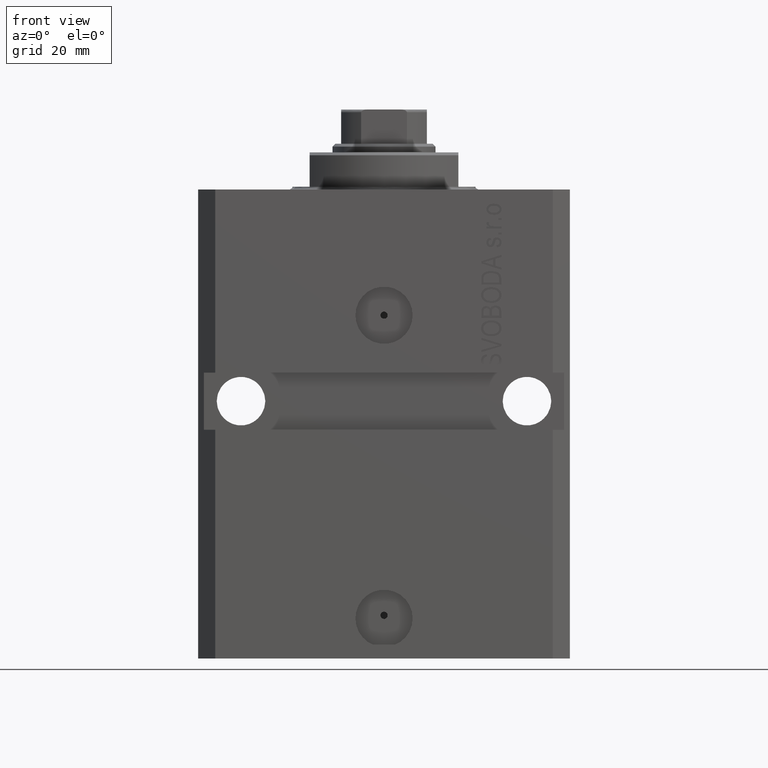
[diagram: clean part render]
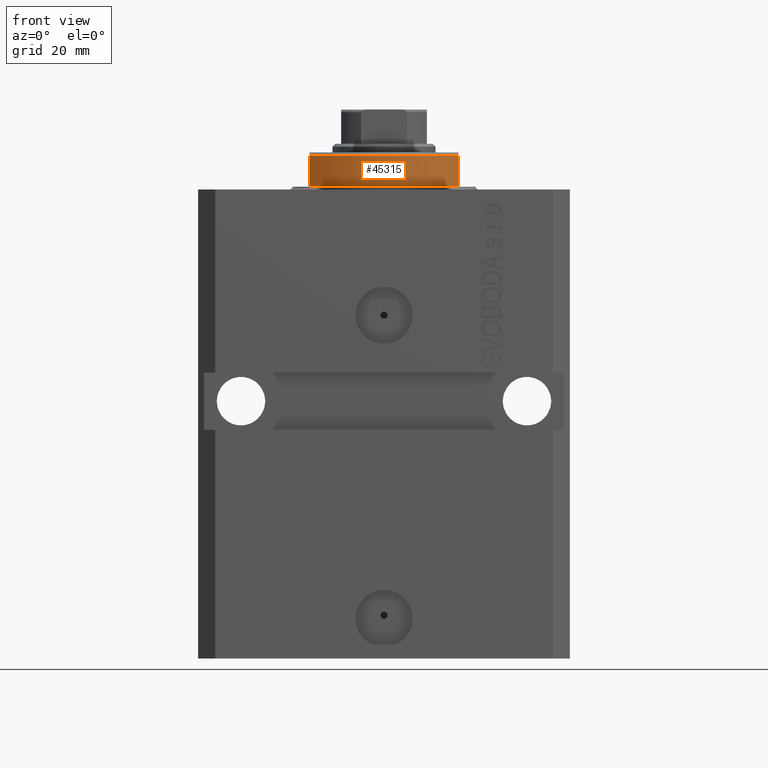
[diagram: same view with one face highlighted and labeled with its STEP entity id]
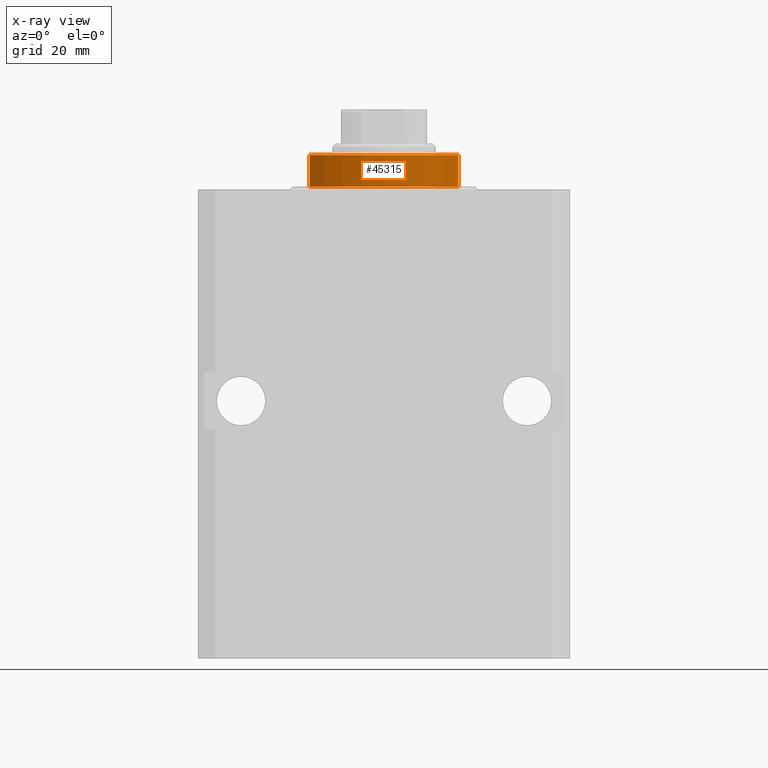
[diagram: x-ray of the same camera — body ghosted, the highlighted face saturated]
A machine part, front view. The second image highlights one B-rep face of the part: STEP entity #45315.
The next image is the same camera in x-ray: the body ghosted, the highlighted face saturated — about 0% of this face is hidden behind the body in this view.
In plain terms, the highlighted cylindrical surface (partial cylindrical patch) has radius 16 mm, axis along (0, 0, -1).
Its self-contained STEP definition (entity closure, byte-faithful):
#39 = CYLINDRICAL_SURFACE ( 'NONE', #16968, 16.00000000000000000 ) ;
#2165 = CARTESIAN_POINT ( 'NONE',  ( 13.00000000000000000, -9.327379053088813876, -6.500000000000000000 ) ) ;
#2357 = CARTESIAN_POINT ( 'NONE',  ( 0.000000000000000000, 0.000000000000000000, -0.4999999999999995559 ) ) ;
#7912 = DIRECTION ( 'NONE',  ( -0.000000000000000000, -0.000000000000000000, 1.000000000000000000 ) ) ;
#8387 = ORIENTED_EDGE ( 'NONE', *, *, #35780, .T. ) ;
#8607 = VECTOR ( 'NONE', #9576, 1000.000000000000000 ) ;
#8662 = EDGE_CURVE ( 'NONE', #38110, #11779, #13844, .T. ) ;
#9576 = DIRECTION ( 'NONE',  ( 0.000000000000000000, 0.000000000000000000, -1.000000000000000000 ) ) ;
#9931 = VERTEX_POINT ( 'NONE', #10102 ) ;
#10102 = CARTESIAN_POINT ( 'NONE',  ( -13.00000000000000000, -9.327379053088815652, -6.000000000000023981 ) ) ;
#11458 = VECTOR ( 'NONE', #42831, 1000.000000000000000 ) ;
#11730 = CARTESIAN_POINT ( 'NONE',  ( 0.000000000000000000, 0.000000000000000000, -6.500000000000000000 ) ) ;
#11779 = VERTEX_POINT ( 'NONE', #18601 ) ;
#13566 = DIRECTION ( 'NONE',  ( 1.000000000000000000, 0.000000000000000000, 0.000000000000000000 ) ) ;
#13844 = LINE ( 'NONE', #2165, #8607 ) ;
#16968 = AXIS2_PLACEMENT_3D ( 'NONE', #11730, #7912, #39889 ) ;
#17059 = CARTESIAN_POINT ( 'NONE',  ( -13.00000000000000000, -9.327379053088813876, -6.500000000000000000 ) ) ;
#17932 = AXIS2_PLACEMENT_3D ( 'NONE', #2357, #39321, #13566 ) ;
#18601 = CARTESIAN_POINT ( 'NONE',  ( 13.00000000000000000, -9.327379053088815652, -6.000000000000023981 ) ) ;
#19283 = CIRCLE ( 'NONE', #45963, 16.00000000000000000 ) ;
#20119 = EDGE_CURVE ( 'NONE', #38110, #35523, #20969, .T. ) ;
#20969 = CIRCLE ( 'NONE', #17932, 16.00000000000000000 ) ;
#28021 = LINE ( 'NONE', #17059, #11458 ) ;
#29238 = CARTESIAN_POINT ( 'NONE',  ( -13.00000000000000000, -9.327379053088815652, -0.4999999999999995559 ) ) ;
#30800 = CARTESIAN_POINT ( 'NONE',  ( 13.00000000000000000, -9.327379053088815652, -0.4999999999999995559 ) ) ;
#34976 = ORIENTED_EDGE ( 'NONE', *, *, #20119, .T. ) ;
#35523 = VERTEX_POINT ( 'NONE', #29238 ) ;
#35780 = EDGE_CURVE ( 'NONE', #35523, #9931, #28021, .T. ) ;
#37012 = FACE_OUTER_BOUND ( 'NONE', #39229, .T. ) ;
#37203 = DIRECTION ( 'NONE',  ( -1.000000000000000000, 0.000000000000000000, 0.000000000000000000 ) ) ;
#38110 = VERTEX_POINT ( 'NONE', #30800 ) ;
#39229 = EDGE_LOOP ( 'NONE', ( #46547, #34976, #8387, #46269 ) ) ;
#39321 = DIRECTION ( 'NONE',  ( -0.000000000000000000, -0.000000000000000000, -1.000000000000000000 ) ) ;
#39889 = DIRECTION ( 'NONE',  ( 1.000000000000000000, 0.000000000000000000, 0.000000000000000000 ) ) ;
#42831 = DIRECTION ( 'NONE',  ( 0.000000000000000000, 0.000000000000000000, -1.000000000000000000 ) ) ;
#43019 = DIRECTION ( 'NONE',  ( 0.000000000000000000, 0.000000000000000000, 1.000000000000000000 ) ) ;
#45315 = ADVANCED_FACE ( 'NONE', ( #37012 ), #39, .T. ) ;
#45963 = AXIS2_PLACEMENT_3D ( 'NONE', #46586, #43019, #37203 ) ;
#46269 = ORIENTED_EDGE ( 'NONE', *, *, #46343, .T. ) ;
#46343 = EDGE_CURVE ( 'NONE', #9931, #11779, #19283, .T. ) ;
#46547 = ORIENTED_EDGE ( 'NONE', *, *, #8662, .F. ) ;
#46586 = CARTESIAN_POINT ( 'NONE',  ( 0.000000000000000000, 0.000000000000000000, -6.000000000000023981 ) ) ;